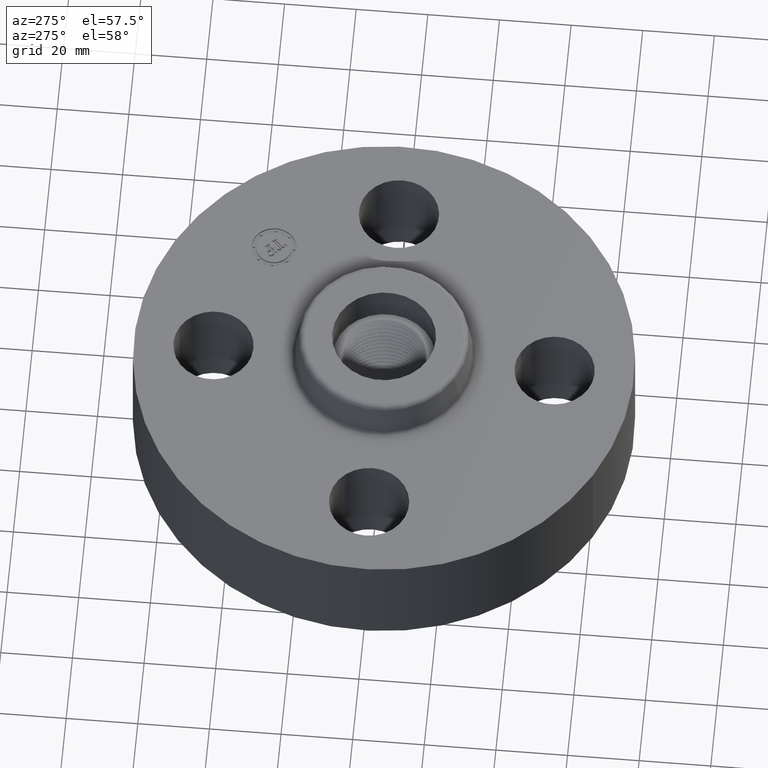
[diagram: clean part render]
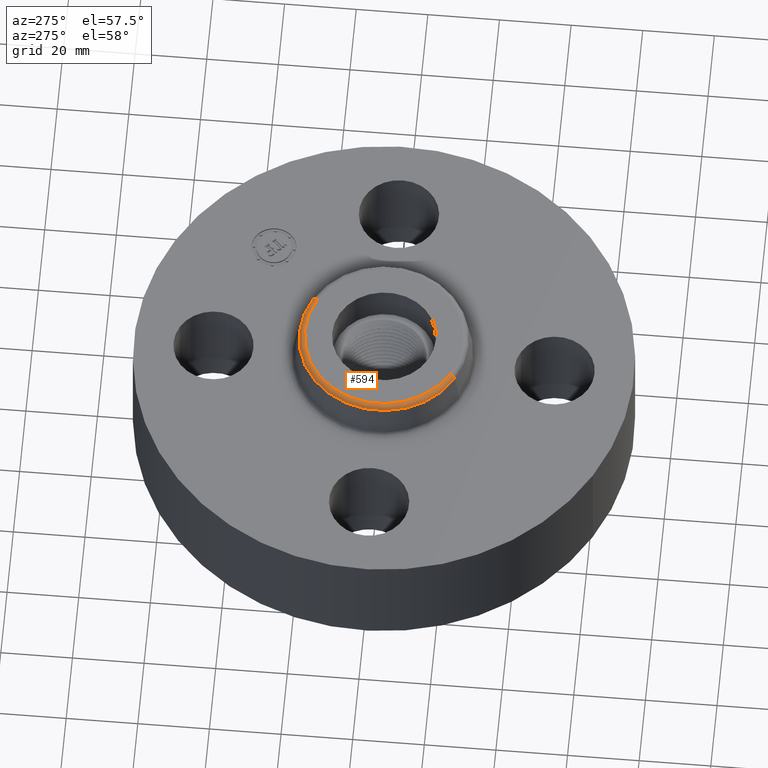
[diagram: same view with one face highlighted and labeled with its STEP entity id]
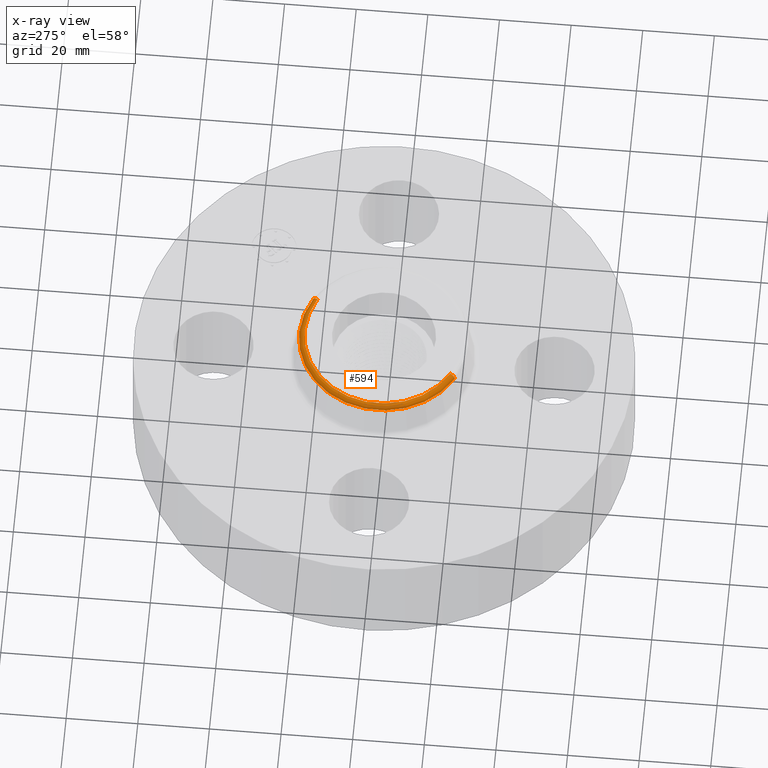
[diagram: x-ray of the same camera — body ghosted, the highlighted face saturated]
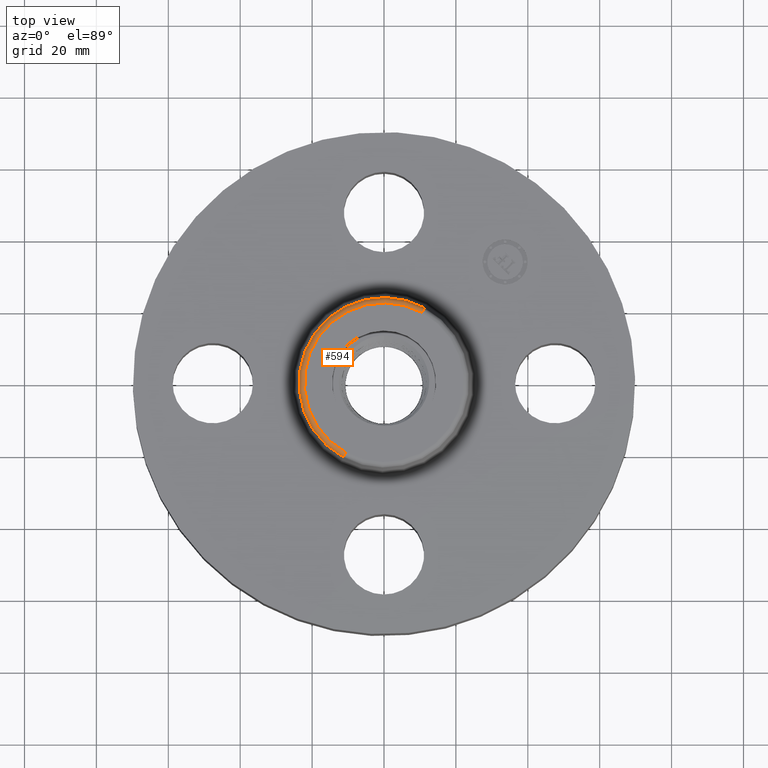
[diagram: same view with one face highlighted and labeled with its STEP entity id]
A machine part, auxiliary view. The second image highlights one B-rep face of the part: STEP entity #594.
The next image is the same camera in x-ray: the body ghosted, the highlighted face saturated — about 0% of this face is hidden behind the body in this view.
A second angle (top view) of the same face is appended — the face is thin or edge-on in the first view.
In plain terms, the highlighted toroidal blend (fillet) surface has major radius 22.1506 mm and minor (blend) radius 1.524 mm.
Its self-contained STEP definition (entity closure, byte-faithful):
#542=AXIS2_PLACEMENT_3D('Circle Axis2P3D',#540,#541,$) ;
#555=AXIS2_PLACEMENT_3D('Torus Axis2P3D',#552,#553,#554) ;
#559=AXIS2_PLACEMENT_3D('Circle Axis2P3D',#557,#558,$) ;
#573=AXIS2_PLACEMENT_3D('Circle Axis2P3D',#571,#572,$) ;
#585=AXIS2_PLACEMENT_3D('Circle Axis2P3D',#583,#584,$) ;
#518=CARTESIAN_POINT('Vertex',(0.446421220907,0.817168563582,1.64041889067)) ;
#525=CARTESIAN_POINT('Vertex',(-0.446421220907,-0.817168563582,1.64041889067)) ;
#540=CARTESIAN_POINT('Axis2P3D Location',(0.,0.,1.64041889067)) ;
#552=CARTESIAN_POINT('Axis2P3D Location',(0.,0.,1.63000000001)) ;
#557=CARTESIAN_POINT('Axis2P3D Location',(0.418092701662,0.76531355693,1.63000000001)) ;
#561=CARTESIAN_POINT('Vertex',(0.418092701662,0.76531355693,1.69000000001)) ;
#568=CARTESIAN_POINT('Vertex',(-0.418092701662,-0.76531355693,1.69000000001)) ;
#571=CARTESIAN_POINT('Axis2P3D Location',(-0.418092701662,-0.76531355693,1.63000000001)) ;
#583=CARTESIAN_POINT('Axis2P3D Location',(0.,0.,1.69000000001)) ;
#541=DIRECTION('Axis2P3D Direction',(0.,0.,-0.0393700787402)) ;
#553=DIRECTION('Axis2P3D Direction',(0.,0.,-0.0393700787402)) ;
#554=DIRECTION('Axis2P3D XDirection',(-0.0188750212049,-0.0345504945626,0.)) ;
#558=DIRECTION('Axis2P3D Direction',(-0.0345504945626,0.0188750212049,0.)) ;
#572=DIRECTION('Axis2P3D Direction',(0.0345504945626,-0.0188750212049,0.)) ;
#584=DIRECTION('Axis2P3D Direction',(0.,0.,-0.0393700787402)) ;
#589=ORIENTED_EDGE('',*,*,#544,.F.) ;
#590=ORIENTED_EDGE('',*,*,#575,.T.) ;
#591=ORIENTED_EDGE('',*,*,#587,.T.) ;
#592=ORIENTED_EDGE('',*,*,#563,.F.) ;
#594=ADVANCED_FACE('PartBody',(#593),#556,.T.) ;
#543=CIRCLE('generated circle',#542,0.931158615802) ;
#560=CIRCLE('generated circle',#559,0.0600000000002) ;
#574=CIRCLE('generated circle',#573,0.0600000000002) ;
#586=CIRCLE('generated circle',#585,0.872070150621) ;
#556=TOROIDAL_SURFACE('homeo Torus',#555,0.872070150621,0.0600000000002) ;
#544=EDGE_CURVE('',#526,#519,#543,.T.) ;
#563=EDGE_CURVE('',#519,#562,#560,.F.) ;
#575=EDGE_CURVE('',#526,#569,#574,.F.) ;
#587=EDGE_CURVE('',#569,#562,#586,.T.) ;
#588=EDGE_LOOP('',(#589,#590,#591,#592)) ;
#593=FACE_OUTER_BOUND('',#588,.T.) ;
#519=VERTEX_POINT('',#518) ;
#526=VERTEX_POINT('',#525) ;
#562=VERTEX_POINT('',#561) ;
#569=VERTEX_POINT('',#568) ;